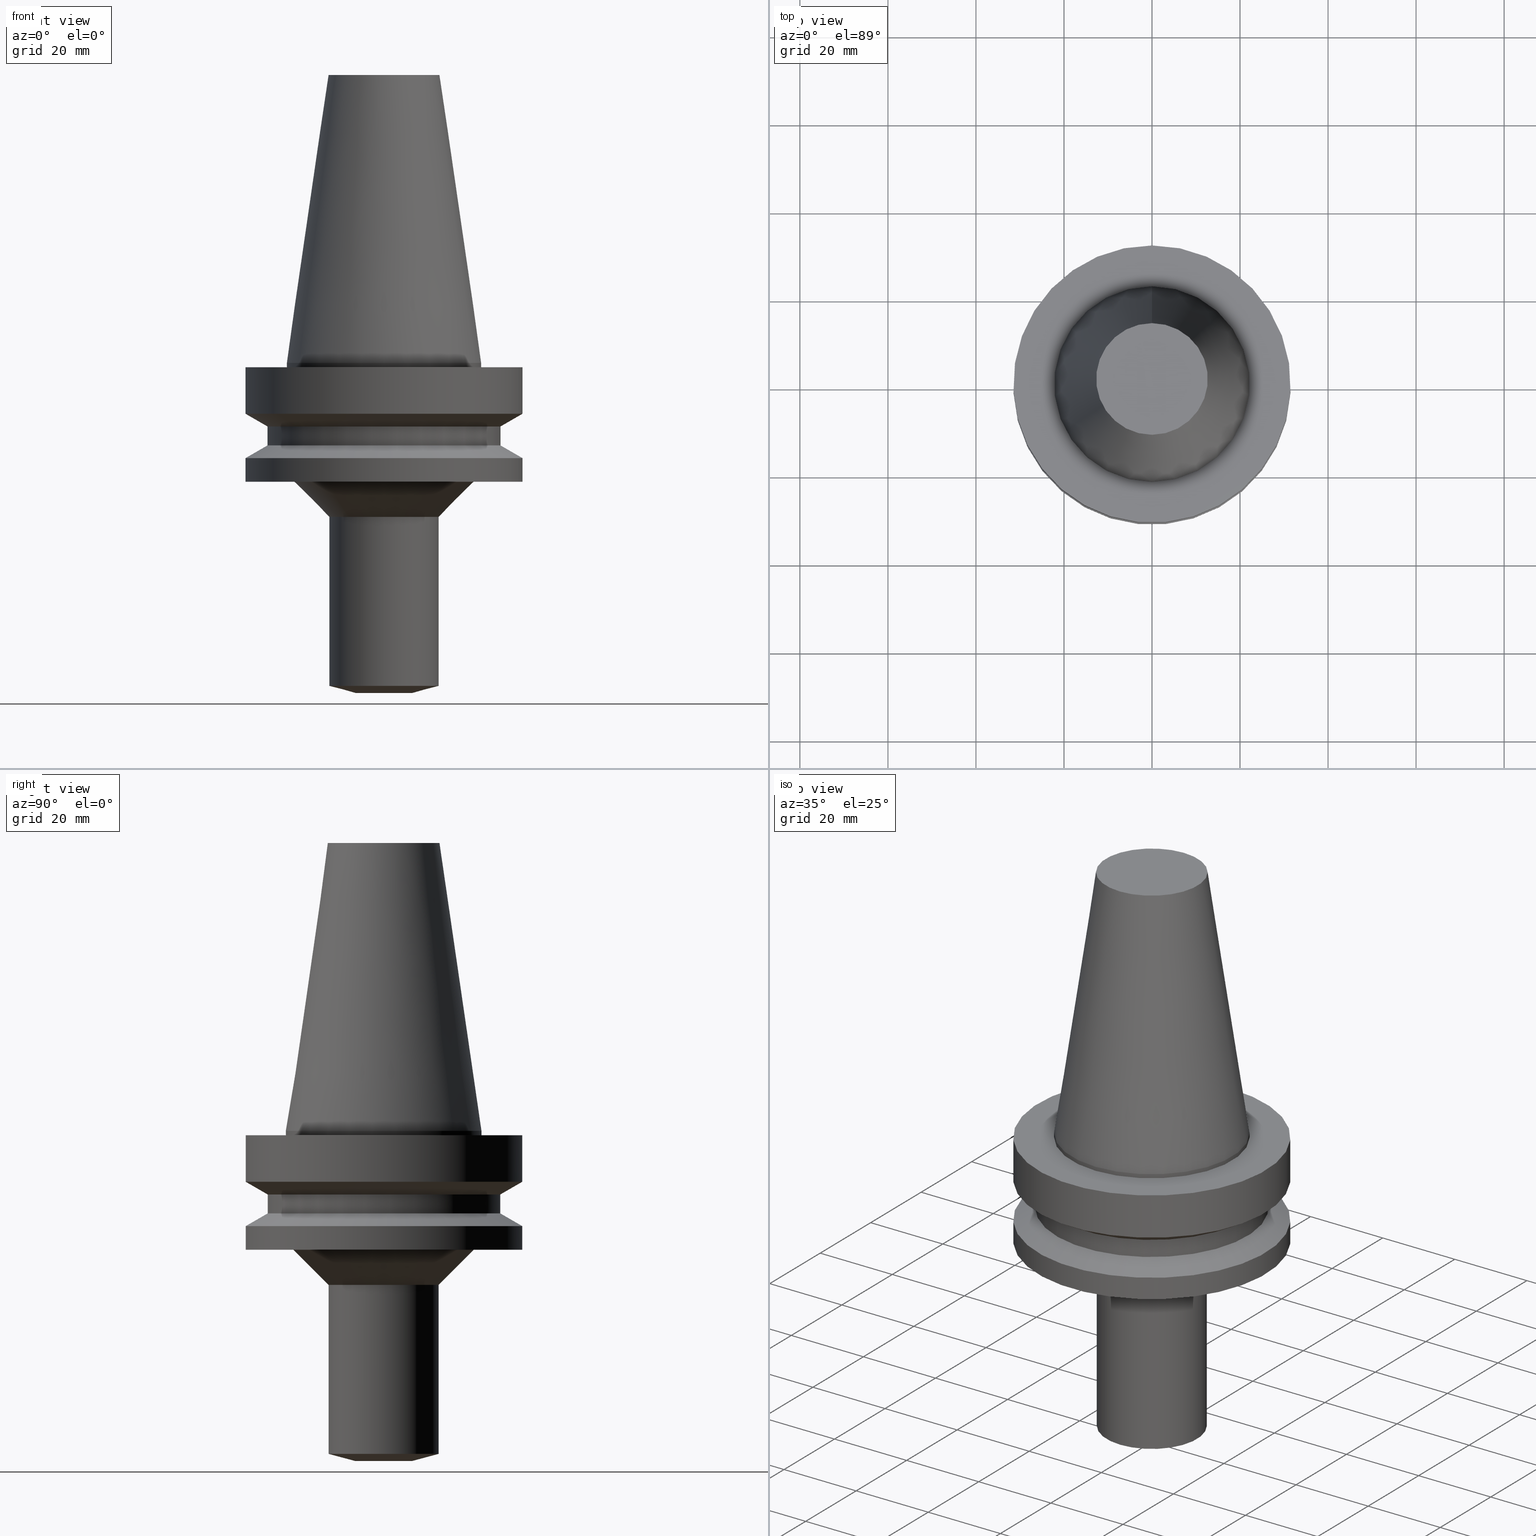
[diagram: canonical four-view strip — front | top / right | iso, engineering-drawing reading convention]
A machine part, canonical four-view strip (front | top / right | iso — engineering-drawing reading convention). The complete STEP part file that produces these views, byte-faithful:
ISO-10303-21;
HEADER;
FILE_DESCRIPTION((''),'1');
FILE_NAME('T:/21_DXF\X2\30C730FC30BF4F5C621057FA6E96\X0\/BBT40M-BSL8-75.stp','2017-05-09T05:47:15',(''),(''),'Spatial Interop R21 SP3','Kubotek KeyCreator 2011 V10.0.2 (22737)',' ');
FILE_SCHEMA(('automotive_design'));
ENDSEC;
DATA;
#1=MECHANICAL_DESIGN_GEOMETRIC_PRESENTATION_REPRESENTATION(' ',(#10,#11,#12,#13,#14,#15,#16,#17,#18,#19,#20,#21,#22,#23,#24,#25,#26,#27,#28,#29,#30,#31,#32,#33,#34,#35,#36,#37),#6);
#2=PRODUCT_DEFINITION_CONTEXT('',#38,'design');
#3=APPLICATION_PROTOCOL_DEFINITION('INTERNATIONAL STANDARD','automotive_design',1994,#38);
#4=PRODUCT_CATEGORY_RELATIONSHIP('NONE','NONE',#39,#40);
#5=SHAPE_DEFINITION_REPRESENTATION(#41,#42);
#6= (GEOMETRIC_REPRESENTATION_CONTEXT(3)GLOBAL_UNCERTAINTY_ASSIGNED_CONTEXT((#45))GLOBAL_UNIT_ASSIGNED_CONTEXT((#47,#48,#49))REPRESENTATION_CONTEXT('NONE','WORKSPACE'));
#10=STYLED_ITEM('',(#51,#52),#53);
#11=STYLED_ITEM('',(#54),#55);
#12=STYLED_ITEM('',(#56),#57);
#13=STYLED_ITEM('',(#58),#59);
#14=STYLED_ITEM('',(#60,#61),#62);
#15=STYLED_ITEM('',(#63,#64),#65);
#16=STYLED_ITEM('',(#66),#67);
#17=STYLED_ITEM('',(#68,#69),#70);
#18=STYLED_ITEM('',(#71,#72),#73);
#19=STYLED_ITEM('',(#74),#75);
#20=STYLED_ITEM('',(#76),#77);
#21=STYLED_ITEM('',(#78),#79);
#22=STYLED_ITEM('',(#80),#81);
#23=STYLED_ITEM('',(#82,#83),#84);
#24=STYLED_ITEM('',(#85,#86),#87);
#25=STYLED_ITEM('',(#88,#89),#90);
#26=STYLED_ITEM('',(#91,#92),#93);
#27=STYLED_ITEM('',(#94),#95);
#28=STYLED_ITEM('',(#96),#97);
#29=STYLED_ITEM('',(#98,#99),#100);
#30=STYLED_ITEM('',(#101,#102),#103);
#31=STYLED_ITEM('',(#104,#105),#106);
#32=STYLED_ITEM('',(#107,#108),#109);
#33=STYLED_ITEM('',(#110),#111);
#34=STYLED_ITEM('',(#112),#113);
#35=STYLED_ITEM('',(#114,#115),#116);
#36=STYLED_ITEM('',(#117,#118),#119);
#37=STYLED_ITEM('',(#120),#121);
#38=APPLICATION_CONTEXT(' ');
#39=PRODUCT_CATEGORY('part','NONE');
#40=PRODUCT_RELATED_PRODUCT_CATEGORY('detail',' ',(#122));
#41=PRODUCT_DEFINITION_SHAPE('NONE','NONE',#123);
#42=ADVANCED_BREP_SHAPE_REPRESENTATION('Unnamed[1]',(#87,#124),#6);
#45=UNCERTAINTY_MEASURE_WITH_UNIT(LENGTH_MEASURE(1.0E-006),#47,'','');
#47= (CONVERSION_BASED_UNIT('MILLIMETRE',#127)LENGTH_UNIT()NAMED_UNIT(#130));
#48= (NAMED_UNIT(#132)PLANE_ANGLE_UNIT()SI_UNIT($,.RADIAN.));
#49= (NAMED_UNIT(#132)SOLID_ANGLE_UNIT()SI_UNIT($,.STERADIAN.));
#51=PRESENTATION_STYLE_ASSIGNMENT((#138));
#52=PRESENTATION_STYLE_ASSIGNMENT((#139));
#53=ADVANCED_FACE('Unnamed[1]',(#140,#141),#142,.T.);
#54=PRESENTATION_STYLE_ASSIGNMENT((#143));
#55=EDGE_CURVE('Unnamed[1]',#144,#144,#145,.T.);
#56=PRESENTATION_STYLE_ASSIGNMENT((#146));
#57=EDGE_CURVE('Unnamed[1]',#147,#147,#148,.T.);
#58=PRESENTATION_STYLE_ASSIGNMENT((#149));
#59=EDGE_CURVE('Unnamed[1]',#150,#150,#151,.T.);
#60=PRESENTATION_STYLE_ASSIGNMENT((#152));
#61=PRESENTATION_STYLE_ASSIGNMENT((#153));
#62=ADVANCED_FACE('Unnamed[1]',(#154,#155),#156,.T.);
#63=PRESENTATION_STYLE_ASSIGNMENT((#157));
#64=PRESENTATION_STYLE_ASSIGNMENT((#158));
#65=ADVANCED_FACE('Unnamed[1]',(#159,#160),#161,.T.);
#66=PRESENTATION_STYLE_ASSIGNMENT((#162));
#67=EDGE_CURVE('Unnamed[1]',#163,#163,#164,.T.);
#68=PRESENTATION_STYLE_ASSIGNMENT((#165));
#69=PRESENTATION_STYLE_ASSIGNMENT((#166));
#70=ADVANCED_FACE('Unnamed[1]',(#167,#168),#169,.T.);
#71=PRESENTATION_STYLE_ASSIGNMENT((#170));
#72=PRESENTATION_STYLE_ASSIGNMENT((#171));
#73=ADVANCED_FACE('Unnamed[1]',(#172,#173),#174,.T.);
#74=PRESENTATION_STYLE_ASSIGNMENT((#175));
#75=EDGE_CURVE('Unnamed[1]',#176,#176,#177,.T.);
#76=PRESENTATION_STYLE_ASSIGNMENT((#178));
#77=EDGE_CURVE('Unnamed[1]',#179,#179,#180,.T.);
#78=PRESENTATION_STYLE_ASSIGNMENT((#181));
#79=EDGE_CURVE('Unnamed[1]',#182,#182,#183,.T.);
#80=PRESENTATION_STYLE_ASSIGNMENT((#184));
#81=EDGE_CURVE('Unnamed[1]',#185,#185,#186,.T.);
#82=PRESENTATION_STYLE_ASSIGNMENT((#187));
#83=PRESENTATION_STYLE_ASSIGNMENT((#188));
#84=ADVANCED_FACE('Unnamed[1]',(#189,#190),#191,.T.);
#85=PRESENTATION_STYLE_ASSIGNMENT((#192));
#86=PRESENTATION_STYLE_ASSIGNMENT((#193));
#87=MANIFOLD_SOLID_BREP('Unnamed[1]',#194);
#88=PRESENTATION_STYLE_ASSIGNMENT((#195));
#89=PRESENTATION_STYLE_ASSIGNMENT((#196));
#90=ADVANCED_FACE('Unnamed[1]',(#197,#198),#199,.T.);
#91=PRESENTATION_STYLE_ASSIGNMENT((#200));
#92=PRESENTATION_STYLE_ASSIGNMENT((#201));
#93=ADVANCED_FACE('Unnamed[1]',(#202),#203,.T.);
#94=PRESENTATION_STYLE_ASSIGNMENT((#204));
#95=EDGE_CURVE('Unnamed[1]',#205,#205,#206,.T.);
#96=PRESENTATION_STYLE_ASSIGNMENT((#207));
#97=EDGE_CURVE('Unnamed[1]',#208,#208,#209,.T.);
#98=PRESENTATION_STYLE_ASSIGNMENT((#210));
#99=PRESENTATION_STYLE_ASSIGNMENT((#211));
#100=ADVANCED_FACE('Unnamed[1]',(#212,#213),#214,.T.);
#101=PRESENTATION_STYLE_ASSIGNMENT((#215));
#102=PRESENTATION_STYLE_ASSIGNMENT((#216));
#103=ADVANCED_FACE('Unnamed[1]',(#217,#218),#219,.T.);
#104=PRESENTATION_STYLE_ASSIGNMENT((#220));
#105=PRESENTATION_STYLE_ASSIGNMENT((#221));
#106=ADVANCED_FACE('Unnamed[1]',(#222,#223),#224,.T.);
#107=PRESENTATION_STYLE_ASSIGNMENT((#225));
#108=PRESENTATION_STYLE_ASSIGNMENT((#226));
#109=ADVANCED_FACE('Unnamed[1]',(#227),#228,.T.);
#110=PRESENTATION_STYLE_ASSIGNMENT((#229));
#111=EDGE_CURVE('Unnamed[1]',#230,#230,#231,.T.);
#112=PRESENTATION_STYLE_ASSIGNMENT((#232));
#113=EDGE_CURVE('Unnamed[1]',#233,#233,#234,.T.);
#114=PRESENTATION_STYLE_ASSIGNMENT((#235));
#115=PRESENTATION_STYLE_ASSIGNMENT((#236));
#116=ADVANCED_FACE('Unnamed[1]',(#237,#238),#239,.T.);
#117=PRESENTATION_STYLE_ASSIGNMENT((#240));
#118=PRESENTATION_STYLE_ASSIGNMENT((#241));
#119=ADVANCED_FACE('Unnamed[1]',(#242,#243),#244,.T.);
#120=PRESENTATION_STYLE_ASSIGNMENT((#245));
#121=EDGE_CURVE('Unnamed[1]',#246,#246,#247,.T.);
#122=PRODUCT('Unnamed[1]','Unnamed[1]','PART-Unnamed[1]-DESC',(#248));
#123=PRODUCT_DEFINITION('NONE','NONE',#249,#2);
#124=AXIS2_PLACEMENT_3D('',#250,#251,#252);
#127=LENGTH_MEASURE_WITH_UNIT(LENGTH_MEASURE(1.0),#253);
#130=DIMENSIONAL_EXPONENTS(1.0,0.0,0.0,0.0,0.0,0.0,0.0);
#132=DIMENSIONAL_EXPONENTS(0.0,0.0,0.0,0.0,0.0,0.0,0.0);
#138=SURFACE_STYLE_USAGE(.BOTH.,#254);
#139=CURVE_STYLE('',#255,POSITIVE_LENGTH_MEASURE(1000.0),#256);
#140=FACE_BOUND('',#257,.T.);
#141=FACE_BOUND('',#258,.T.);
#142=CYLINDRICAL_SURFACE('',#259,31.5000000000005);
#143=CURVE_STYLE('',#260,POSITIVE_LENGTH_MEASURE(1000.0),#261);
#144=VERTEX_POINT('',#262);
#145=CIRCLE('',#263,31.5000000000004);
#146=CURVE_STYLE('',#264,POSITIVE_LENGTH_MEASURE(1000.0),#265);
#147=VERTEX_POINT('',#266);
#148=CIRCLE('',#267,12.5);
#149=CURVE_STYLE('',#268,POSITIVE_LENGTH_MEASURE(1000.0),#269);
#150=VERTEX_POINT('',#270);
#151=CIRCLE('',#271,12.6875000000001);
#152=SURFACE_STYLE_USAGE(.BOTH.,#272);
#153=CURVE_STYLE('',#273,POSITIVE_LENGTH_MEASURE(1000.0),#274);
#154=FACE_BOUND('',#275,.T.);
#155=FACE_BOUND('',#276,.T.);
#156=CYLINDRICAL_SURFACE('',#277,26.4999999999997);
#157=SURFACE_STYLE_USAGE(.BOTH.,#278);
#158=CURVE_STYLE('',#279,POSITIVE_LENGTH_MEASURE(1000.0),#280);
#159=FACE_BOUND('',#281,.T.);
#160=FACE_BOUND('',#282,.T.);
#161=CONICAL_SURFACE('',#283,16.5000000000001,0.785398163397448);
#162=CURVE_STYLE('',#284,POSITIVE_LENGTH_MEASURE(1000.0),#285);
#163=VERTEX_POINT('',#286);
#164=CIRCLE('',#287,26.5);
#165=SURFACE_STYLE_USAGE(.BOTH.,#288);
#166=CURVE_STYLE('',#289,POSITIVE_LENGTH_MEASURE(1000.0),#290);
#167=FACE_BOUND('',#291,.T.);
#168=FACE_BOUND('',#292,.T.);
#169=CONICAL_SURFACE('',#293,17.4562500000001,0.144812498238936);
#170=SURFACE_STYLE_USAGE(.BOTH.,#294);
#171=CURVE_STYLE('',#295,POSITIVE_LENGTH_MEASURE(1000.0),#296);
#172=FACE_BOUND('',#297,.T.);
#173=FACE_BOUND('',#298,.T.);
#174=CONICAL_SURFACE('',#299,9.5,1.30899693856443);
#175=CURVE_STYLE('',#300,POSITIVE_LENGTH_MEASURE(1000.0),#301);
#176=VERTEX_POINT('',#302);
#177=CIRCLE('',#303,31.4999999999996);
#178=CURVE_STYLE('',#304,POSITIVE_LENGTH_MEASURE(1000.0),#305);
#179=VERTEX_POINT('',#306);
#180=CIRCLE('',#307,6.5);
#181=CURVE_STYLE('',#308,POSITIVE_LENGTH_MEASURE(1000.0),#309);
#182=VERTEX_POINT('',#310);
#183=CIRCLE('',#311,22.225);
#184=CURVE_STYLE('',#312,POSITIVE_LENGTH_MEASURE(1000.0),#313);
#185=VERTEX_POINT('',#314);
#186=CIRCLE('',#315,20.5000000000002);
#187=SURFACE_STYLE_USAGE(.BOTH.,#316);
#188=CURVE_STYLE('',#317,POSITIVE_LENGTH_MEASURE(1000.0),#318);
#189=FACE_BOUND('',#319,.T.);
#190=FACE_OUTER_BOUND('',#320,.T.);
#191=PLANE('',#321);
#192=SURFACE_STYLE_USAGE(.BOTH.,#322);
#193=CURVE_STYLE('',#323,POSITIVE_LENGTH_MEASURE(1000.0),#324);
#194=CLOSED_SHELL('',(#93,#70,#106,#119,#100,#103,#62,#116,#53,#84,#65,#90,#73,#109));
#195=SURFACE_STYLE_USAGE(.BOTH.,#325);
#196=CURVE_STYLE('',#326,POSITIVE_LENGTH_MEASURE(1000.0),#327);
#197=FACE_BOUND('',#328,.T.);
#198=FACE_BOUND('',#329,.T.);
#199=CYLINDRICAL_SURFACE('',#330,12.5);
#200=SURFACE_STYLE_USAGE(.BOTH.,#331);
#201=CURVE_STYLE('',#332,POSITIVE_LENGTH_MEASURE(1000.0),#333);
#202=FACE_OUTER_BOUND('',#334,.T.);
#203=PLANE('',#335);
#204=CURVE_STYLE('',#336,POSITIVE_LENGTH_MEASURE(1000.0),#337);
#205=VERTEX_POINT('',#338);
#206=CIRCLE('',#339,26.4999999999994);
#207=CURVE_STYLE('',#340,POSITIVE_LENGTH_MEASURE(1000.0),#341);
#208=VERTEX_POINT('',#342);
#209=CIRCLE('',#343,12.5);
#210=SURFACE_STYLE_USAGE(.BOTH.,#344);
#211=CURVE_STYLE('',#345,POSITIVE_LENGTH_MEASURE(1000.0),#346);
#212=FACE_BOUND('',#347,.T.);
#213=FACE_BOUND('',#348,.T.);
#214=CYLINDRICAL_SURFACE('',#349,31.5);
#215=SURFACE_STYLE_USAGE(.BOTH.,#350);
#216=CURVE_STYLE('',#351,POSITIVE_LENGTH_MEASURE(1000.0),#352);
#217=FACE_BOUND('',#353,.T.);
#218=FACE_BOUND('',#354,.T.);
#219=CONICAL_SURFACE('',#355,28.9999999999999,1.04719755119657);
#220=SURFACE_STYLE_USAGE(.BOTH.,#356);
#221=CURVE_STYLE('',#357,POSITIVE_LENGTH_MEASURE(1000.0),#358);
#222=FACE_BOUND('',#359,.T.);
#223=FACE_BOUND('',#360,.T.);
#224=CYLINDRICAL_SURFACE('',#361,22.225);
#225=SURFACE_STYLE_USAGE(.BOTH.,#362);
#226=CURVE_STYLE('',#363,POSITIVE_LENGTH_MEASURE(1000.0),#364);
#227=FACE_OUTER_BOUND('',#365,.T.);
#228=PLANE('',#366);
#229=CURVE_STYLE('',#367,POSITIVE_LENGTH_MEASURE(1000.0),#368);
#230=VERTEX_POINT('',#369);
#231=CIRCLE('',#370,31.5000000000003);
#232=CURVE_STYLE('',#371,POSITIVE_LENGTH_MEASURE(1000.0),#372);
#233=VERTEX_POINT('',#373);
#234=CIRCLE('',#374,22.225);
#235=SURFACE_STYLE_USAGE(.BOTH.,#375);
#236=CURVE_STYLE('',#376,POSITIVE_LENGTH_MEASURE(1000.0),#377);
#237=FACE_BOUND('',#378,.T.);
#238=FACE_BOUND('',#379,.T.);
#239=CONICAL_SURFACE('',#380,29.0000000000003,1.04719755119651);
#240=SURFACE_STYLE_USAGE(.BOTH.,#381);
#241=CURVE_STYLE('',#382,POSITIVE_LENGTH_MEASURE(1000.0),#383);
#242=FACE_OUTER_BOUND('',#384,.T.);
#243=FACE_BOUND('',#385,.T.);
#244=PLANE('',#386);
#245=CURVE_STYLE('',#387,POSITIVE_LENGTH_MEASURE(1000.0),#388);
#246=VERTEX_POINT('',#389);
#247=CIRCLE('',#390,31.5000000000007);
#248=PRODUCT_CONTEXT('',#38,'mechanical');
#249=PRODUCT_DEFINITION_FORMATION_WITH_SPECIFIED_SOURCE(' ','NONE',#122,.NOT_KNOWN.);
#250=CARTESIAN_POINT('',(0.0,0.0,0.0));
#251=DIRECTION('',(0.0,0.0,1.0));
#252=DIRECTION('',(1.0,0.0,0.0));
#253= (NAMED_UNIT(#130)LENGTH_UNIT()SI_UNIT(.MILLI.,.METRE.));
#254=SURFACE_SIDE_STYLE('',(#392));
#255=DRAUGHTING_PRE_DEFINED_CURVE_FONT('continuous');
#256=COLOUR_RGB('',0.0,1.0,0.0);
#257=EDGE_LOOP('',(#393));
#258=EDGE_LOOP('',(#394));
#259=AXIS2_PLACEMENT_3D('',#395,#396,#397);
#260=DRAUGHTING_PRE_DEFINED_CURVE_FONT('continuous');
#261=COLOUR_RGB('',0.0,1.0,0.0);
#262=CARTESIAN_POINT('',(1.65327317884891E-015,31.5000000000004,-26.9999999999997));
#263=AXIS2_PLACEMENT_3D('',#398,#399,#400);
#264=DRAUGHTING_PRE_DEFINED_CURVE_FONT('continuous');
#265=COLOUR_RGB('',0.0,1.0,0.0);
#266=CARTESIAN_POINT('',(2.14313189850787E-015,12.5,-35.0));
#267=AXIS2_PLACEMENT_3D('',#401,#402,#403);
#268=DRAUGHTING_PRE_DEFINED_CURVE_FONT('continuous');
#269=COLOUR_RGB('',0.0,1.0,0.0);
#270=CARTESIAN_POINT('',(-4.00459503321185E-015,12.6875000000002,65.4000000000001));
#271=AXIS2_PLACEMENT_3D('',#404,#405,#406);
#272=SURFACE_SIDE_STYLE('',(#407));
#273=DRAUGHTING_PRE_DEFINED_CURVE_FONT('continuous');
#274=COLOUR_RGB('',0.0,1.0,0.0);
#275=EDGE_LOOP('',(#408));
#276=EDGE_LOOP('',(#409));
#277=AXIS2_PLACEMENT_3D('',#410,#411,#412);
#278=SURFACE_SIDE_STYLE('',(#413));
#279=DRAUGHTING_PRE_DEFINED_CURVE_FONT('continuous');
#280=COLOUR_RGB('',0.0,1.0,0.0);
#281=EDGE_LOOP('',(#414));
#282=EDGE_LOOP('',(#415));
#283=AXIS2_PLACEMENT_3D('',#416,#417,#418);
#284=DRAUGHTING_PRE_DEFINED_CURVE_FONT('continuous');
#285=COLOUR_RGB('',0.0,1.0,0.0);
#286=CARTESIAN_POINT('',(1.1479681728942E-015,26.5,-18.7477430013855));
#287=AXIS2_PLACEMENT_3D('',#419,#420,#421);
#288=SURFACE_SIDE_STYLE('',(#422));
#289=DRAUGHTING_PRE_DEFINED_CURVE_FONT('continuous');
#290=COLOUR_RGB('',0.0,1.0,0.0);
#291=EDGE_LOOP('',(#423));
#292=EDGE_LOOP('',(#424));
#293=AXIS2_PLACEMENT_3D('',#425,#426,#427);
#294=SURFACE_SIDE_STYLE('',(#428));
#295=DRAUGHTING_PRE_DEFINED_CURVE_FONT('continuous');
#296=COLOUR_RGB('',0.0,1.0,0.0);
#297=EDGE_LOOP('',(#429));
#298=EDGE_LOOP('',(#430));
#299=AXIS2_PLACEMENT_3D('',#431,#432,#433);
#300=DRAUGHTING_PRE_DEFINED_CURVE_FONT('continuous');
#301=COLOUR_RGB('',0.0,1.0,0.0);
#302=CARTESIAN_POINT('',(6.12323399573568E-017,31.4999999999997,-0.999999999999825));
#303=AXIS2_PLACEMENT_3D('',#434,#435,#436);
#304=DRAUGHTING_PRE_DEFINED_CURVE_FONT('continuous');
#305=COLOUR_RGB('',0.0,1.0,0.0);
#306=CARTESIAN_POINT('',(4.59242549680257E-015,6.50000000000001,-75.0));
#307=AXIS2_PLACEMENT_3D('',#437,#438,#439);
#308=DRAUGHTING_PRE_DEFINED_CURVE_FONT('continuous');
#309=COLOUR_RGB('',0.0,1.0,0.0);
#310=CARTESIAN_POINT('',(6.12323399573604E-017,22.2250000000001,-0.999999999999884));
#311=AXIS2_PLACEMENT_3D('',#440,#441,#442);
#312=DRAUGHTING_PRE_DEFINED_CURVE_FONT('continuous');
#313=COLOUR_RGB('',0.0,1.0,0.0);
#314=CARTESIAN_POINT('',(1.65327317884891E-015,20.5000000000003,-26.9999999999997));
#315=AXIS2_PLACEMENT_3D('',#443,#444,#445);
#316=SURFACE_SIDE_STYLE('',(#446));
#317=DRAUGHTING_PRE_DEFINED_CURVE_FONT('continuous');
#318=COLOUR_RGB('',0.0,1.0,0.0);
#319=EDGE_LOOP('',(#447));
#320=EDGE_LOOP('',(#448));
#321=AXIS2_PLACEMENT_3D('',#449,#450,#451);
#322=SURFACE_SIDE_STYLE('',(#452));
#323=DRAUGHTING_PRE_DEFINED_CURVE_FONT('continuous');
#324=COLOUR_RGB('',0.0,1.0,0.0);
#325=SURFACE_SIDE_STYLE('',(#453));
#326=DRAUGHTING_PRE_DEFINED_CURVE_FONT('continuous');
#327=COLOUR_RGB('',0.0,1.0,0.0);
#328=EDGE_LOOP('',(#454));
#329=EDGE_LOOP('',(#455));
#330=AXIS2_PLACEMENT_3D('',#456,#457,#458);
#331=SURFACE_SIDE_STYLE('',(#459));
#332=DRAUGHTING_PRE_DEFINED_CURVE_FONT('continuous');
#333=COLOUR_RGB('',0.0,1.0,0.0);
#334=EDGE_LOOP('',(#460));
#335=AXIS2_PLACEMENT_3D('',#461,#462,#463);
#336=DRAUGHTING_PRE_DEFINED_CURVE_FONT('continuous');
#337=COLOUR_RGB('',0.0,1.0,0.0);
#338=CARTESIAN_POINT('',(8.8494551369045E-016,26.4999999999995,-14.4522569986152));
#339=AXIS2_PLACEMENT_3D('',#464,#465,#466);
#340=DRAUGHTING_PRE_DEFINED_CURVE_FONT('continuous');
#341=COLOUR_RGB('',0.0,1.0,0.0);
#342=CARTESIAN_POINT('',(4.49398256037927E-015,12.5,-73.3923048426396));
#343=AXIS2_PLACEMENT_3D('',#467,#468,#469);
#344=SURFACE_SIDE_STYLE('',(#470));
#345=DRAUGHTING_PRE_DEFINED_CURVE_FONT('continuous');
#346=COLOUR_RGB('',0.0,1.0,0.0);
#347=EDGE_LOOP('',(#471));
#348=EDGE_LOOP('',(#472));
#349=AXIS2_PLACEMENT_3D('',#473,#474,#475);
#350=SURFACE_SIDE_STYLE('',(#476));
#351=DRAUGHTING_PRE_DEFINED_CURVE_FONT('continuous');
#352=COLOUR_RGB('',0.0,1.0,0.0);
#353=EDGE_LOOP('',(#477));
#354=EDGE_LOOP('',(#478));
#355=AXIS2_PLACEMENT_3D('',#479,#480,#481);
#356=SURFACE_SIDE_STYLE('',(#482));
#357=DRAUGHTING_PRE_DEFINED_CURVE_FONT('continuous');
#358=COLOUR_RGB('',0.0,1.0,0.0);
#359=EDGE_LOOP('',(#483));
#360=EDGE_LOOP('',(#484));
#361=AXIS2_PLACEMENT_3D('',#485,#486,#487);
#362=SURFACE_SIDE_STYLE('',(#488));
#363=DRAUGHTING_PRE_DEFINED_CURVE_FONT('continuous');
#364=COLOUR_RGB('',0.0,1.0,0.0);
#365=EDGE_LOOP('',(#489));
#366=AXIS2_PLACEMENT_3D('',#490,#491,#492);
#367=DRAUGHTING_PRE_DEFINED_CURVE_FONT('continuous');
#368=COLOUR_RGB('',0.0,1.0,0.0);
#369=CARTESIAN_POINT('',(7.08182973902923E-016,31.5000000000004,-11.5655056526664));
#370=AXIS2_PLACEMENT_3D('',#493,#494,#495);
#371=DRAUGHTING_PRE_DEFINED_CURVE_FONT('continuous');
#372=COLOUR_RGB('',0.0,1.0,0.0);
#373=CARTESIAN_POINT('',(1.71319921032766E-029,22.2250000000001,-2.8153873565375E-013));
#374=AXIS2_PLACEMENT_3D('',#496,#497,#498);
#375=SURFACE_SIDE_STYLE('',(#499));
#376=DRAUGHTING_PRE_DEFINED_CURVE_FONT('continuous');
#377=COLOUR_RGB('',0.0,1.0,0.0);
#378=EDGE_LOOP('',(#500));
#379=EDGE_LOOP('',(#501));
#380=AXIS2_PLACEMENT_3D('',#502,#503,#504);
#381=SURFACE_SIDE_STYLE('',(#505));
#382=DRAUGHTING_PRE_DEFINED_CURVE_FONT('continuous');
#383=COLOUR_RGB('',0.0,1.0,0.0);
#384=EDGE_LOOP('',(#506));
#385=EDGE_LOOP('',(#507));
#386=AXIS2_PLACEMENT_3D('',#508,#509,#510);
#387=DRAUGHTING_PRE_DEFINED_CURVE_FONT('continuous');
#388=COLOUR_RGB('',0.0,1.0,0.0);
#389=CARTESIAN_POINT('',(1.32473071268174E-015,31.5000000000007,-21.6344943473346));
#390=AXIS2_PLACEMENT_3D('',#511,#512,#513);
#392=SURFACE_STYLE_FILL_AREA(#514);
#393=ORIENTED_EDGE('',*,*,#55,.F.);
#394=ORIENTED_EDGE('',*,*,#121,.T.);
#395=CARTESIAN_POINT('',(1.48900194576533E-015,3.43157920092865E-014,-24.3172471736672));
#396=DIRECTION('',(6.12323399573677E-017,-4.72374929569225E-016,-1.0));
#397=DIRECTION('',(2.40974695439514E-032,1.0,-4.72374929569225E-016));
#398=CARTESIAN_POINT('',(1.65327317884891E-015,3.3048526831896E-014,-26.9999999999997));
#399=DIRECTION('',(6.12323399573677E-017,-4.72374929569225E-016,-1.0));
#400=DIRECTION('',(2.40974695439514E-032,1.0,-4.72374929569225E-016));
#401=CARTESIAN_POINT('',(2.14313189850787E-015,2.92695273953421E-014,-35.0));
#402=DIRECTION('',(6.12323399573677E-017,-4.72374929569225E-016,-1.0));
#403=DIRECTION('',(2.40974695439514E-032,1.0,-4.72374929569225E-016));
#404=CARTESIAN_POINT('',(-4.00459503321185E-015,7.66959703240923E-014,65.4000000000001));
#405=DIRECTION('',(6.12323399573677E-017,-4.72374929569225E-016,-1.0));
#406=DIRECTION('',(2.40974695439514E-032,1.0,-4.72374929569225E-016));
#407=SURFACE_STYLE_FILL_AREA(#515);
#408=ORIENTED_EDGE('',*,*,#67,.F.);
#409=ORIENTED_EDGE('',*,*,#95,.T.);
#410=CARTESIAN_POINT('',(1.01645684329232E-015,3.79612260994156E-014,-16.6000000000003));
#411=DIRECTION('',(6.12323399573677E-017,-4.72374929569225E-016,-1.0));
#412=DIRECTION('',(2.40974695439514E-032,1.0,-4.72374929569225E-016));
#413=SURFACE_STYLE_FILL_AREA(#516);
#414=ORIENTED_EDGE('',*,*,#57,.F.);
#415=ORIENTED_EDGE('',*,*,#81,.T.);
#416=CARTESIAN_POINT('',(1.89820253867839E-015,3.1159027113619E-014,-30.9999999999999));
#417=DIRECTION('',(-6.12323399573677E-017,4.72374929569225E-016,1.0));
#418=DIRECTION('',(2.40974695439514E-032,1.0,-4.72374929569225E-016));
#419=CARTESIAN_POINT('',(1.1479681728942E-015,3.69466861504035E-014,-18.7477430013855));
#420=DIRECTION('',(6.12323399573676E-017,-4.72374929569225E-016,-1.0));
#421=DIRECTION('',(2.40974695439514E-032,1.0,-4.72374929569225E-016));
#422=SURFACE_STYLE_FILL_AREA(#517);
#423=ORIENTED_EDGE('',*,*,#113,.F.);
#424=ORIENTED_EDGE('',*,*,#59,.T.);
#425=CARTESIAN_POINT('',(-2.00229751660592E-015,6.12493101271785E-014,32.6999999999999));
#426=DIRECTION('',(6.12323399573677E-017,-4.72374929569225E-016,-1.0));
#427=DIRECTION('',(2.40974695439514E-032,1.0,-4.72374929569225E-016));
#428=SURFACE_STYLE_FILL_AREA(#518);
#429=ORIENTED_EDGE('',*,*,#77,.F.);
#430=ORIENTED_EDGE('',*,*,#97,.T.);
#431=CARTESIAN_POINT('',(4.54320402859092E-015,1.07542476559365E-014,-74.1961524213198));
#432=DIRECTION('',(-6.12323399573677E-017,4.72374929569225E-016,1.0));
#433=DIRECTION('',(2.40974695439514E-032,1.0,-4.72374929569225E-016));
#434=CARTESIAN_POINT('',(6.12323399573563E-017,4.53302750006958E-014,-0.999999999999815));
#435=DIRECTION('',(6.12323399573677E-017,-4.72374929569225E-016,-1.0));
#436=DIRECTION('',(2.40974695439514E-032,1.0,-4.72374929569225E-016));
#437=CARTESIAN_POINT('',(4.59242549680257E-015,1.03745302125731E-014,-75.0));
#438=DIRECTION('',(6.12323399573677E-017,-4.72374929569225E-016,-1.0));
#439=DIRECTION('',(2.40974695439514E-032,1.0,-4.72374929569225E-016));
#440=CARTESIAN_POINT('',(6.12323399573598E-017,4.53302750006958E-014,-0.999999999999872));
#441=DIRECTION('',(6.12323399573677E-017,-4.72374929569225E-016,-1.0));
#442=DIRECTION('',(2.40974695439514E-032,1.0,-4.72374929569225E-016));
#443=CARTESIAN_POINT('',(1.65327317884891E-015,3.3048526831896E-014,-26.9999999999997));
#444=DIRECTION('',(6.12323399573676E-017,-4.72374929569225E-016,-1.0));
#445=DIRECTION('',(2.40974695439514E-032,1.0,-4.72374929569225E-016));
#446=SURFACE_STYLE_FILL_AREA(#519);
#447=ORIENTED_EDGE('',*,*,#81,.F.);
#448=ORIENTED_EDGE('',*,*,#55,.T.);
#449=CARTESIAN_POINT('',(1.65327317884891E-015,26.0000000000003,-26.9999999999997));
#450=DIRECTION('',(6.12323399573677E-017,3.02923041711511E-015,-1.0));
#451=DIRECTION('',(-1.9031401944076E-031,1.0,3.02923041711511E-015));
#452=SURFACE_STYLE_FILL_AREA(#520);
#453=SURFACE_STYLE_FILL_AREA(#521);
#454=ORIENTED_EDGE('',*,*,#97,.F.);
#455=ORIENTED_EDGE('',*,*,#57,.T.);
#456=CARTESIAN_POINT('',(3.31855722944357E-015,2.0201746247321E-014,-54.1961524213198));
#457=DIRECTION('',(6.12323399573677E-017,-4.72374929569225E-016,-1.0));
#458=DIRECTION('',(2.40974695439514E-032,1.0,-4.72374929569225E-016));
#459=SURFACE_STYLE_FILL_AREA(#522);
#460=ORIENTED_EDGE('',*,*,#59,.F.);
#461=CARTESIAN_POINT('',(-4.00459503321185E-015,6.34375000000014,65.4000000000001));
#462=DIRECTION('',(-6.12323399573677E-017,-1.22464679914735E-016,1.0));
#463=DIRECTION('',(1.23259516440783E-032,-1.0,-1.22464679914735E-016));
#464=CARTESIAN_POINT('',(8.8494551369045E-016,3.89757660484277E-014,-14.4522569986152));
#465=DIRECTION('',(6.12323399573677E-017,-4.72374929569225E-016,-1.0));
#466=DIRECTION('',(2.40974695439514E-032,1.0,-4.72374929569225E-016));
#467=CARTESIAN_POINT('',(4.49398256037927E-015,1.11339650993E-014,-73.3923048426396));
#468=DIRECTION('',(6.12323399573677E-017,-4.72374929569225E-016,-1.0));
#469=DIRECTION('',(2.40974695439514E-032,1.0,-4.72374929569225E-016));
#470=SURFACE_STYLE_FILL_AREA(#523);
#471=ORIENTED_EDGE('',*,*,#111,.F.);
#472=ORIENTED_EDGE('',*,*,#75,.T.);
#473=CARTESIAN_POINT('',(3.8470765693014E-016,4.2834835006425E-014,-6.28275282633308));
#474=DIRECTION('',(6.12323399573677E-017,-4.72374929569225E-016,-1.0));
#475=DIRECTION('',(2.40974695439514E-032,1.0,-4.72374929569225E-016));
#476=SURFACE_STYLE_FILL_AREA(#524);
#477=ORIENTED_EDGE('',*,*,#95,.F.);
#478=ORIENTED_EDGE('',*,*,#111,.T.);
#479=CARTESIAN_POINT('',(7.96564243796687E-016,3.9657580530291E-014,-13.0088813256408));
#480=DIRECTION('',(-6.12323399573677E-017,4.72374929569225E-016,1.0));
#481=DIRECTION('',(2.40974695439514E-032,1.0,-4.72374929569225E-016));
#482=SURFACE_STYLE_FILL_AREA(#525);
#483=ORIENTED_EDGE('',*,*,#79,.F.);
#484=ORIENTED_EDGE('',*,*,#113,.T.);
#485=CARTESIAN_POINT('',(3.06161699786882E-017,4.55664624654803E-014,-0.500000000000071));
#486=DIRECTION('',(6.12323399573677E-017,-4.72374929569225E-016,-1.0));
#487=DIRECTION('',(2.40974695439514E-032,1.0,-4.72374929569225E-016));
#488=SURFACE_STYLE_FILL_AREA(#526);
#489=ORIENTED_EDGE('',*,*,#77,.T.);
#490=CARTESIAN_POINT('',(4.59242549680257E-015,3.25000000000001,-75.0));
#491=DIRECTION('',(6.12323399573677E-017,1.22464679914735E-016,-1.0));
#492=DIRECTION('',(-1.23259516440783E-032,1.0,1.22464679914735E-016));
#493=CARTESIAN_POINT('',(7.08182973902923E-016,4.03393950121542E-014,-11.5655056526663));
#494=DIRECTION('',(6.12323399573677E-017,-4.72374929569225E-016,-1.0));
#495=DIRECTION('',(2.40974695439514E-032,1.0,-4.72374929569225E-016));
#496=CARTESIAN_POINT('',(1.65331138531142E-029,4.58026499302648E-014,-2.70006239588838E-013));
#497=DIRECTION('',(6.12323399573677E-017,-4.72374929569225E-016,-1.0));
#498=DIRECTION('',(2.40974695439514E-032,1.0,-4.72374929569225E-016));
#499=SURFACE_STYLE_FILL_AREA(#527);
#500=ORIENTED_EDGE('',*,*,#121,.F.);
#501=ORIENTED_EDGE('',*,*,#67,.T.);
#502=CARTESIAN_POINT('',(1.23634944278797E-015,3.62648716685402E-014,-20.1911186743601));
#503=DIRECTION('',(6.12323399573677E-017,-4.72374929569225E-016,-1.0));
#504=DIRECTION('',(2.40974695439514E-032,1.0,-4.72374929569225E-016));
#505=SURFACE_STYLE_FILL_AREA(#528);
#506=ORIENTED_EDGE('',*,*,#75,.F.);
#507=ORIENTED_EDGE('',*,*,#79,.T.);
#508=CARTESIAN_POINT('',(6.12323399573586E-017,26.8624999999999,-0.999999999999855));
#509=DIRECTION('',(-6.12323399573677E-017,-6.28704535573121E-015,1.0));
#510=DIRECTION('',(3.89797651280292E-031,-1.0,-6.28704535573121E-015));
#511=CARTESIAN_POINT('',(1.32473071268174E-015,3.55830571866769E-014,-21.6344943473346));
#512=DIRECTION('',(6.12323399573677E-017,-4.72374929569225E-016,-1.0));
#513=DIRECTION('',(2.40974695439514E-032,1.0,-4.72374929569225E-016));
#514=FILL_AREA_STYLE('',(#529));
#515=FILL_AREA_STYLE('',(#530));
#516=FILL_AREA_STYLE('',(#531));
#517=FILL_AREA_STYLE('',(#532));
#518=FILL_AREA_STYLE('',(#533));
#519=FILL_AREA_STYLE('',(#534));
#520=FILL_AREA_STYLE('',(#535));
#521=FILL_AREA_STYLE('',(#536));
#522=FILL_AREA_STYLE('',(#537));
#523=FILL_AREA_STYLE('',(#538));
#524=FILL_AREA_STYLE('',(#539));
#525=FILL_AREA_STYLE('',(#540));
#526=FILL_AREA_STYLE('',(#541));
#527=FILL_AREA_STYLE('',(#542));
#528=FILL_AREA_STYLE('',(#543));
#529=FILL_AREA_STYLE_COLOUR('',#544);
#530=FILL_AREA_STYLE_COLOUR('',#545);
#531=FILL_AREA_STYLE_COLOUR('',#546);
#532=FILL_AREA_STYLE_COLOUR('',#547);
#533=FILL_AREA_STYLE_COLOUR('',#548);
#534=FILL_AREA_STYLE_COLOUR('',#549);
#535=FILL_AREA_STYLE_COLOUR('',#550);
#536=FILL_AREA_STYLE_COLOUR('',#551);
#537=FILL_AREA_STYLE_COLOUR('',#552);
#538=FILL_AREA_STYLE_COLOUR('',#553);
#539=FILL_AREA_STYLE_COLOUR('',#554);
#540=FILL_AREA_STYLE_COLOUR('',#555);
#541=FILL_AREA_STYLE_COLOUR('',#556);
#542=FILL_AREA_STYLE_COLOUR('',#557);
#543=FILL_AREA_STYLE_COLOUR('',#558);
#544=COLOUR_RGB('',0.0,1.0,0.0);
#545=COLOUR_RGB('',0.0,1.0,0.0);
#546=COLOUR_RGB('',0.0,1.0,0.0);
#547=COLOUR_RGB('',0.0,1.0,0.0);
#548=COLOUR_RGB('',0.0,1.0,0.0);
#549=COLOUR_RGB('',0.0,1.0,0.0);
#550=COLOUR_RGB('',0.0,1.0,0.0);
#551=COLOUR_RGB('',0.0,1.0,0.0);
#552=COLOUR_RGB('',0.0,1.0,0.0);
#553=COLOUR_RGB('',0.0,1.0,0.0);
#554=COLOUR_RGB('',0.0,1.0,0.0);
#555=COLOUR_RGB('',0.0,1.0,0.0);
#556=COLOUR_RGB('',0.0,1.0,0.0);
#557=COLOUR_RGB('',0.0,1.0,0.0);
#558=COLOUR_RGB('',0.0,1.0,0.0);
ENDSEC;
END-ISO-10303-21;
